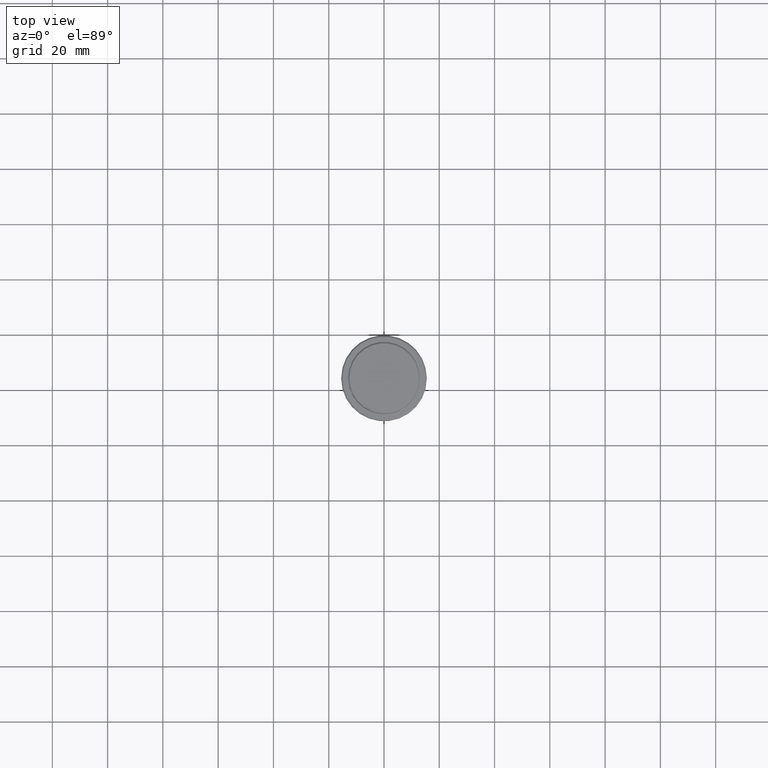
[diagram: clean part render]
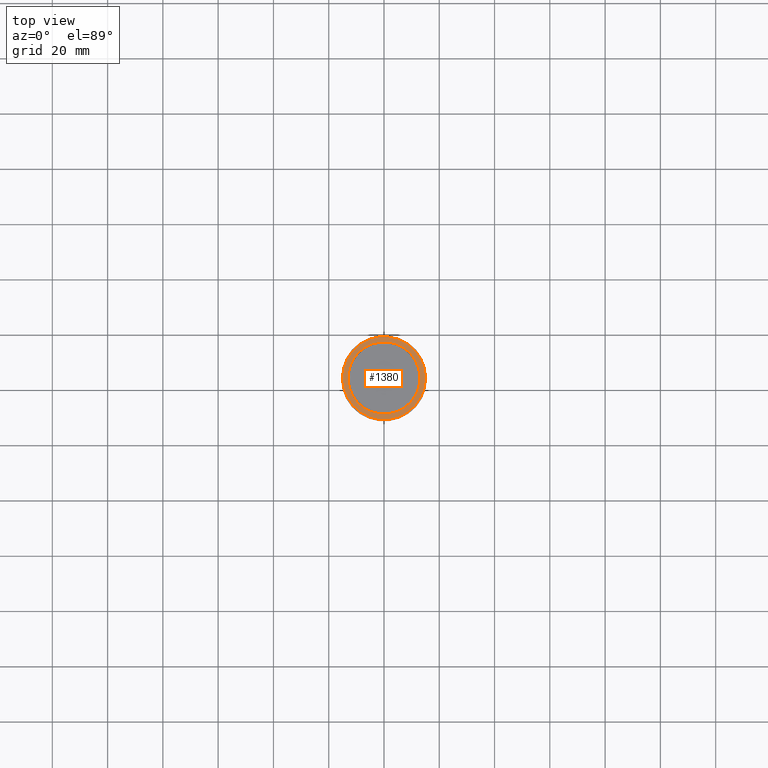
[diagram: same view with one face highlighted and labeled with its STEP entity id]
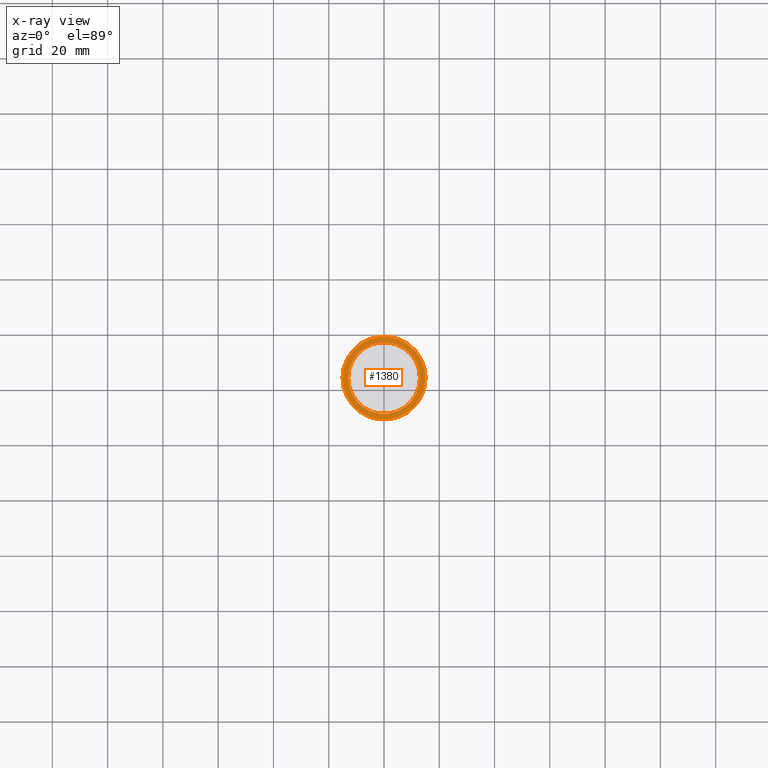
[diagram: x-ray of the same camera — body ghosted, the highlighted face saturated]
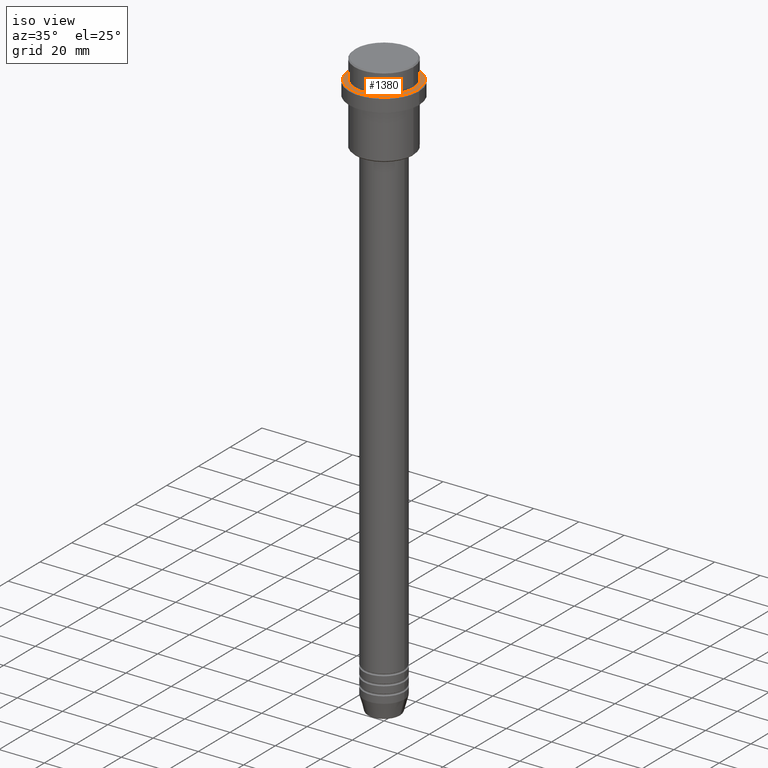
[diagram: same view with one face highlighted and labeled with its STEP entity id]
A machine part, top view. The second image highlights one B-rep face of the part: STEP entity #1380.
The next image is the same camera in x-ray: the body ghosted, the highlighted face saturated — about 0% of this face is hidden behind the body in this view.
A second angle (iso view) of the same face is appended — the face is thin or edge-on in the first view.
In plain terms, the highlighted planar face has unit normal (0, -0, 1).
Its self-contained STEP definition (entity closure, byte-faithful):
#247 = CIRCLE ( 'NONE', #1057, 14.99999999999995737 ) ;
#249 = AXIS2_PLACEMENT_3D ( 'NONE', #665, #433, #1301 ) ;
#296 = VERTEX_POINT ( 'NONE', #1010 ) ;
#338 = DIRECTION ( 'NONE',  ( -0.000000000000000000, -0.000000000000000000, 1.000000000000000000 ) ) ;
#368 = AXIS2_PLACEMENT_3D ( 'NONE', #401, #1378, #374 ) ;
#374 = DIRECTION ( 'NONE',  ( 1.000000000000000000, 0.000000000000000000, 0.000000000000000000 ) ) ;
#376 = ORIENTED_EDGE ( 'NONE', *, *, #1295, .T. ) ;
#399 = VERTEX_POINT ( 'NONE', #1381 ) ;
#401 = CARTESIAN_POINT ( 'NONE',  ( 0.000000000000000000, 12.49999999999999289, -9.000000000000000000 ) ) ;
#433 = DIRECTION ( 'NONE',  ( 0.000000000000000000, 0.000000000000000000, -1.000000000000000000 ) ) ;
#449 = CARTESIAN_POINT ( 'NONE',  ( 0.000000000000000000, 0.000000000000000000, -9.000000000000000000 ) ) ;
#460 = DIRECTION ( 'NONE',  ( 1.000000000000000000, 0.000000000000000000, 0.000000000000000000 ) ) ;
#461 = ORIENTED_EDGE ( 'NONE', *, *, #755, .T. ) ;
#477 = DIRECTION ( 'NONE',  ( 0.000000000000000000, 0.000000000000000000, -1.000000000000000000 ) ) ;
#521 = AXIS2_PLACEMENT_3D ( 'NONE', #705, #477, #460 ) ;
#541 = EDGE_CURVE ( 'NONE', #954, #296, #247, .T. ) ;
#613 = CARTESIAN_POINT ( 'NONE',  ( 0.000000000000000000, 0.000000000000000000, -9.000000000000000000 ) ) ;
#665 = CARTESIAN_POINT ( 'NONE',  ( 0.000000000000000000, 0.000000000000000000, -9.000000000000000000 ) ) ;
#678 = CARTESIAN_POINT ( 'NONE',  ( -12.99999999999999467, 1.592040838891558504E-15, -9.000000000000000000 ) ) ;
#705 = CARTESIAN_POINT ( 'NONE',  ( 0.000000000000000000, 0.000000000000000000, -9.000000000000000000 ) ) ;
#729 = PLANE ( 'NONE',  #368 ) ;
#733 = ORIENTED_EDGE ( 'NONE', *, *, #1035, .T. ) ;
#755 = EDGE_CURVE ( 'NONE', #1157, #399, #764, .T. ) ;
#764 = CIRCLE ( 'NONE', #521, 12.99999999999999467 ) ;
#792 = DIRECTION ( 'NONE',  ( 1.000000000000000000, 0.000000000000000000, 0.000000000000000000 ) ) ;
#815 = AXIS2_PLACEMENT_3D ( 'NONE', #449, #338, #792 ) ;
#954 = VERTEX_POINT ( 'NONE', #1268 ) ;
#956 = FACE_BOUND ( 'NONE', #1024, .T. ) ;
#1010 = CARTESIAN_POINT ( 'NONE',  ( 14.99999999999995737, 1.867586368699711009E-15, -9.000000000000000000 ) ) ;
#1024 = EDGE_LOOP ( 'NONE', ( #733, #461 ) ) ;
#1035 = EDGE_CURVE ( 'NONE', #399, #1157, #1173, .T. ) ;
#1056 = DIRECTION ( 'NONE',  ( 1.000000000000000000, 0.000000000000000000, 0.000000000000000000 ) ) ;
#1057 = AXIS2_PLACEMENT_3D ( 'NONE', #613, #1273, #1056 ) ;
#1157 = VERTEX_POINT ( 'NONE', #678 ) ;
#1173 = CIRCLE ( 'NONE', #249, 12.99999999999999467 ) ;
#1199 = CIRCLE ( 'NONE', #815, 14.99999999999995737 ) ;
#1268 = CARTESIAN_POINT ( 'NONE',  ( -14.99999999999995737, 0.000000000000000000, -9.000000000000000000 ) ) ;
#1273 = DIRECTION ( 'NONE',  ( -0.000000000000000000, -0.000000000000000000, 1.000000000000000000 ) ) ;
#1295 = EDGE_CURVE ( 'NONE', #296, #954, #1199, .T. ) ;
#1301 = DIRECTION ( 'NONE',  ( 1.000000000000000000, 0.000000000000000000, 0.000000000000000000 ) ) ;
#1337 = EDGE_LOOP ( 'NONE', ( #1390, #376 ) ) ;
#1363 = FACE_OUTER_BOUND ( 'NONE', #1337, .T. ) ;
#1378 = DIRECTION ( 'NONE',  ( 0.000000000000000000, -0.000000000000000000, 1.000000000000000000 ) ) ;
#1380 = ADVANCED_FACE ( 'NONE', ( #1363, #956 ), #729, .T. ) ;
#1381 = CARTESIAN_POINT ( 'NONE',  ( 12.99999999999999467, 0.000000000000000000, -9.000000000000000000 ) ) ;
#1390 = ORIENTED_EDGE ( 'NONE', *, *, #541, .T. ) ;